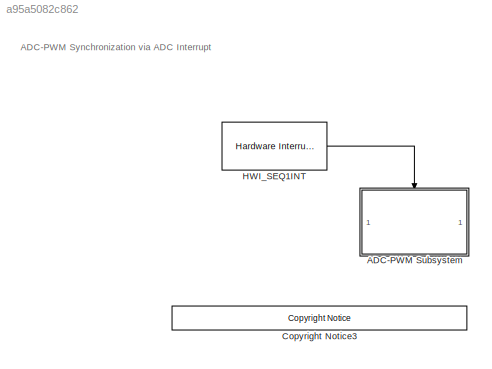
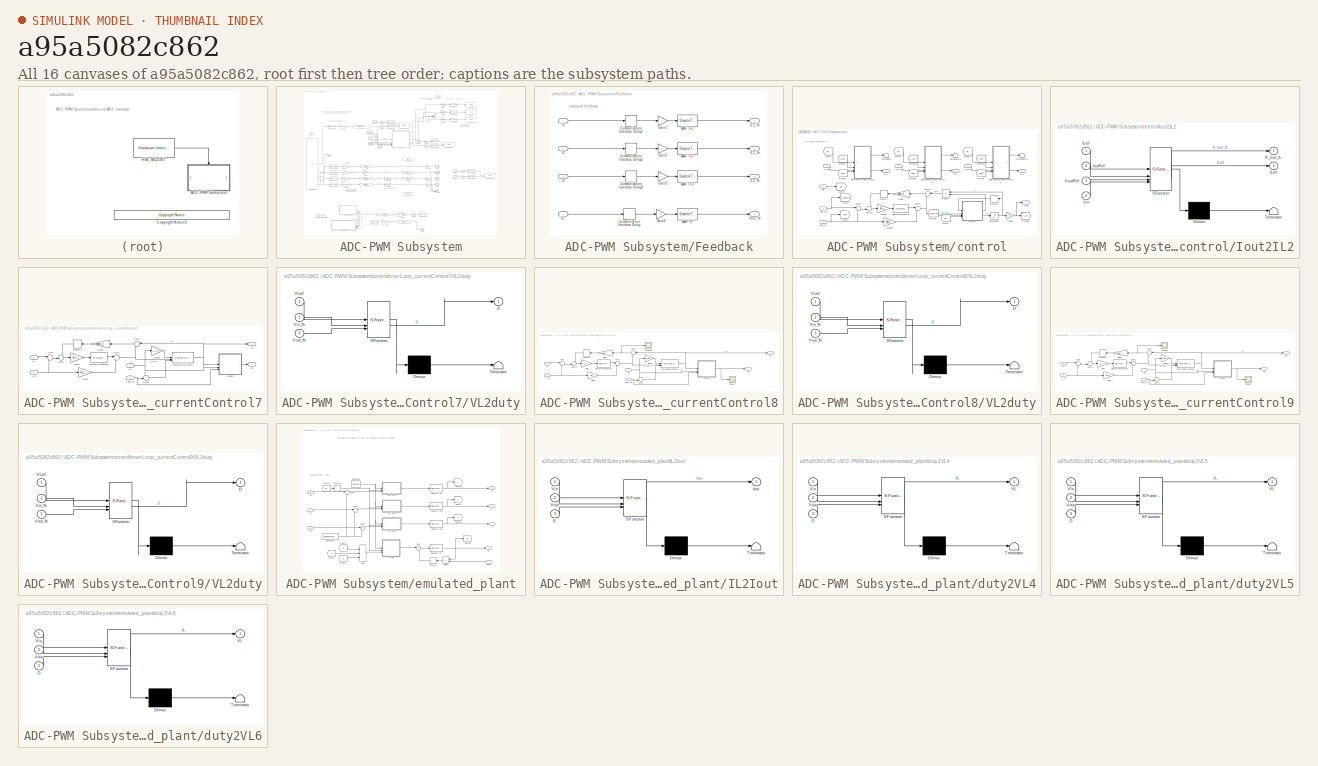
[diagram: thumbnail index - all 16 canvases of the model, root first then tree order]
MODEL slx_a95a5082c862
KIND model
CONFIG AbsTol = auto
CONFIG EnableMultiTasking = on
CONFIG FixedStep = Tsw
CONFIG MaxStep = auto
CONFIG MinStep = auto
CONFIG RelTol = 1e-3
CONFIG SampleTimeConstraint = Unconstrained
CONFIG SolverName = FixedStepDiscrete
CONFIG StartTime = 0.0
CONFIG StopTime = inf
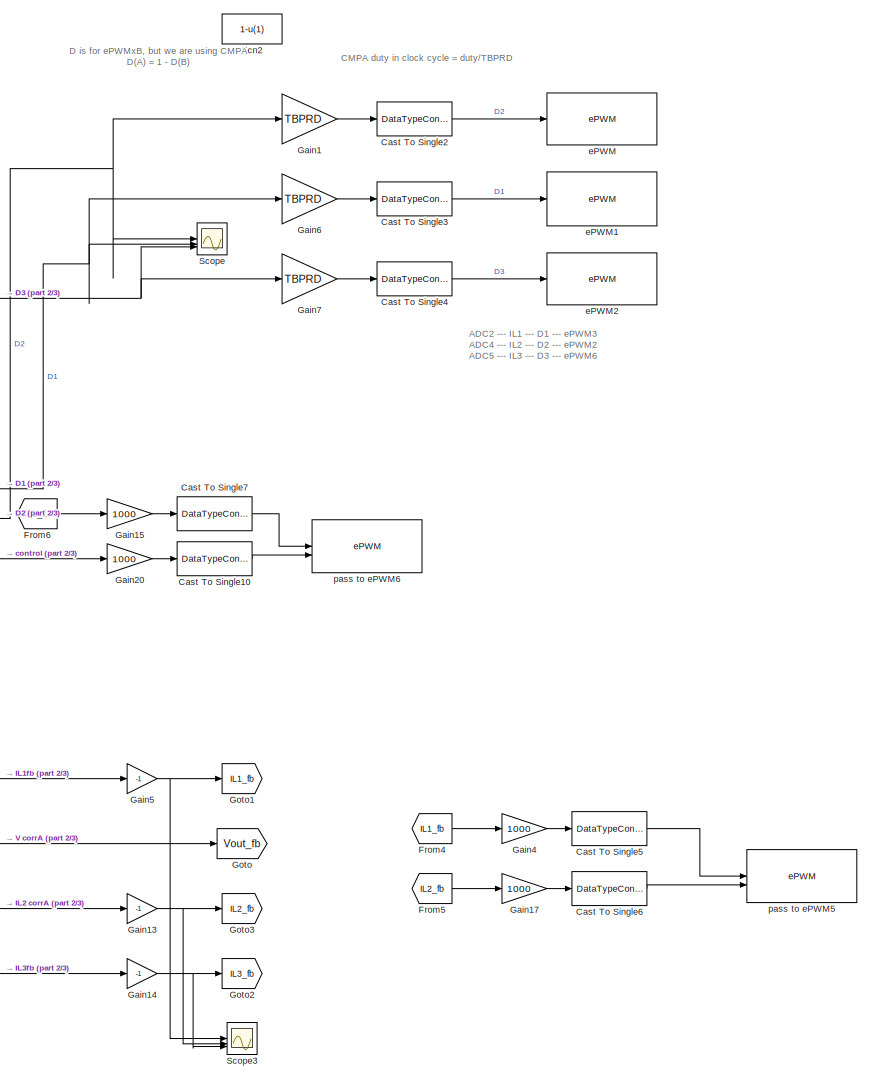
[diagram: ADC-PWM Subsystem - part 1/3, middle right region]
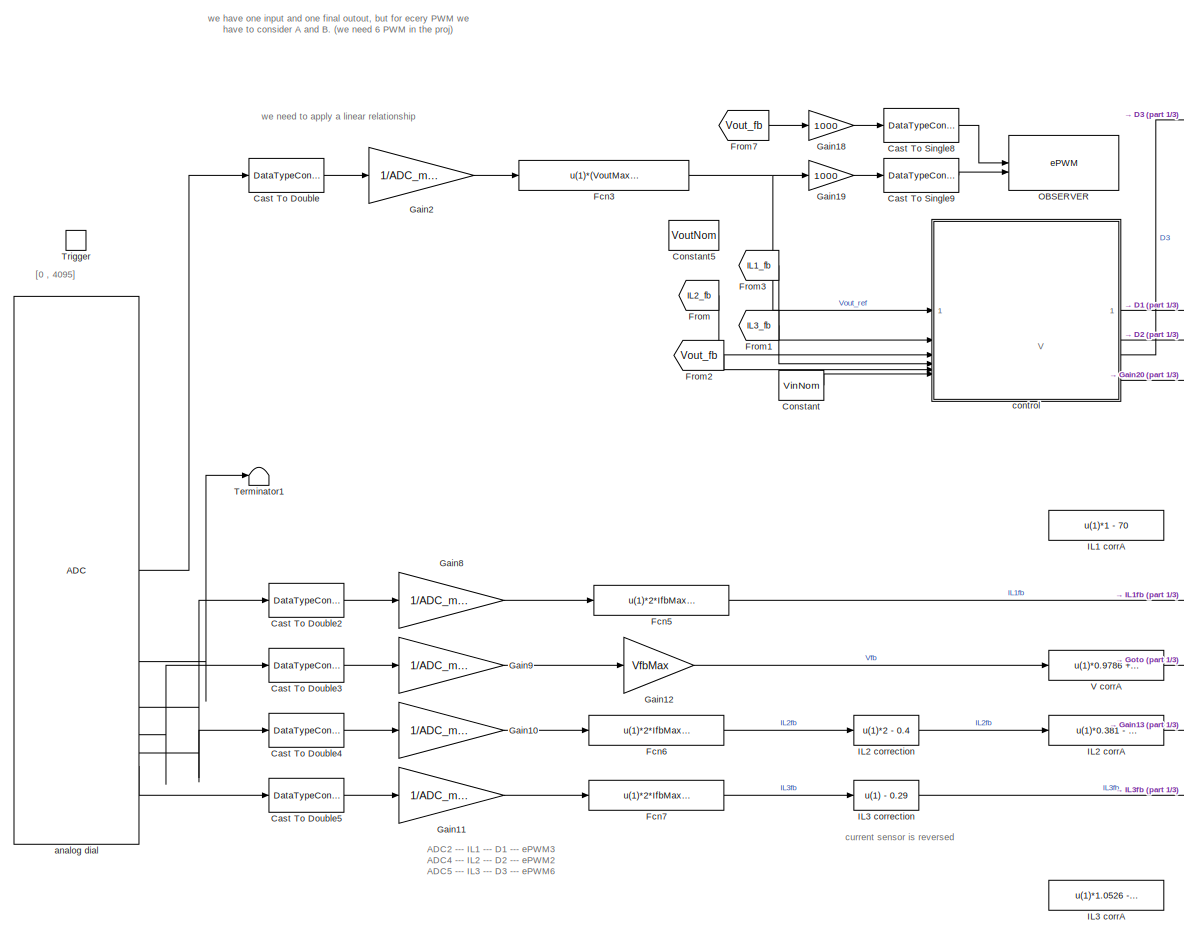
[diagram: ADC-PWM Subsystem - part 2/3, middle left region]
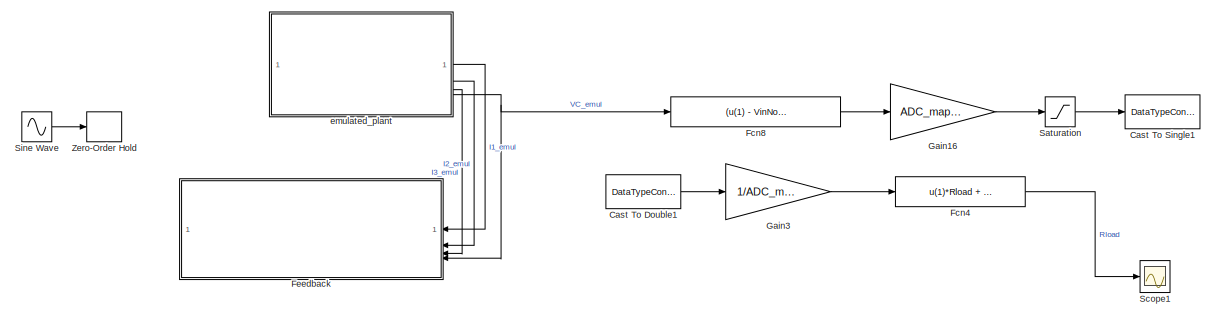
[diagram: ADC-PWM Subsystem - part 3/3, bottom center region]
BLOCK [SubSystem] ADC-PWM Subsystem
  TreatAsAtomicUnit = on
BLOCK [DataTypeConversion] ADC-PWM Subsystem/Cast To Double
  OutDataTypeStr = double
  RndMeth = Floor
  SaturateOnIntegerOverflow = off
BLOCK [DataTypeConversion] ADC-PWM Subsystem/Cast To Double1
  Commented = on
  OutDataTypeStr = double
  RndMeth = Floor
  SaturateOnIntegerOverflow = off
BLOCK [DataTypeConversion] ADC-PWM Subsystem/Cast To Double2
  OutDataTypeStr = double
  RndMeth = Floor
  SaturateOnIntegerOverflow = off
BLOCK [DataTypeConversion] ADC-PWM Subsystem/Cast To Double3
  OutDataTypeStr = double
  RndMeth = Floor
  SaturateOnIntegerOverflow = off
BLOCK [DataTypeConversion] ADC-PWM Subsystem/Cast To Double4
  OutDataTypeStr = double
  RndMeth = Floor
  SaturateOnIntegerOverflow = off
BLOCK [DataTypeConversion] ADC-PWM Subsystem/Cast To Double5
  OutDataTypeStr = double
  RndMeth = Floor
  SaturateOnIntegerOverflow = off
BLOCK [DataTypeConversion] ADC-PWM Subsystem/Cast To Single1
  Commented = on
  OutDataTypeStr = uint16
  RndMeth = Floor
  SaturateOnIntegerOverflow = off
BLOCK [DataTypeConversion] ADC-PWM Subsystem/Cast To Single10
  OutDataTypeStr = uint16
  RndMeth = Floor
  SaturateOnIntegerOverflow = off
BLOCK [DataTypeConversion] ADC-PWM Subsystem/Cast To Single2
  OutDataTypeStr = uint16
  RndMeth = Floor
  SaturateOnIntegerOverflow = off
BLOCK [DataTypeConversion] ADC-PWM Subsystem/Cast To Single3
  OutDataTypeStr = uint16
  RndMeth = Floor
  SaturateOnIntegerOverflow = off
BLOCK [DataTypeConversion] ADC-PWM Subsystem/Cast To Single4
  OutDataTypeStr = uint16
  RndMeth = Floor
  SaturateOnIntegerOverflow = off
BLOCK [DataTypeConversion] ADC-PWM Subsystem/Cast To Single5
  OutDataTypeStr = uint16
  RndMeth = Floor
  SaturateOnIntegerOverflow = off
BLOCK [DataTypeConversion] ADC-PWM Subsystem/Cast To Single6
  OutDataTypeStr = uint16
  RndMeth = Floor
  SaturateOnIntegerOverflow = off
BLOCK [DataTypeConversion] ADC-PWM Subsystem/Cast To Single7
  OutDataTypeStr = uint16
  RndMeth = Floor
  SaturateOnIntegerOverflow = off
BLOCK [DataTypeConversion] ADC-PWM Subsystem/Cast To Single8
  OutDataTypeStr = uint16
  RndMeth = Floor
  SaturateOnIntegerOverflow = off
BLOCK [DataTypeConversion] ADC-PWM Subsystem/Cast To Single9
  OutDataTypeStr = uint16
  RndMeth = Floor
  SaturateOnIntegerOverflow = off
BLOCK [Constant] ADC-PWM Subsystem/Constant
  Value = VinNom
BLOCK [Constant] ADC-PWM Subsystem/Constant5
  Commented = on
  SampleTime = -1
  Value = VoutNom
BLOCK [Fcn] ADC-PWM Subsystem/Fcn2
  Commented = on
  Expr = 1-u(1)
BLOCK [Fcn] ADC-PWM Subsystem/Fcn3
  Expr = u(1)*(VoutMax-VinNom) + VinNom
BLOCK [Fcn] ADC-PWM Subsystem/Fcn4
  Commented = on
  Expr = u(1)*Rload + 0.5*Rload
BLOCK [Fcn] ADC-PWM Subsystem/Fcn5
  Expr = u(1)*2*IfbMax - IfbMax
BLOCK [Fcn] ADC-PWM Subsystem/Fcn6
  Expr = u(1)*2*IfbMax - IfbMax
BLOCK [Fcn] ADC-PWM Subsystem/Fcn7
  Expr = u(1)*2*IfbMax - IfbMax
BLOCK [Fcn] ADC-PWM Subsystem/Fcn8
  Commented = on
  Expr = (u(1) - VinNom) / (VoutMax-VinNom)
BLOCK [SubSystem] ADC-PWM Subsystem/Feedback
  Commented = on
  NameLocation = top
BLOCK [DiscreteTransferFcn] ADC-PWM Subsystem/Feedback/AAF TF
  Denominator = zden_aaf
  InputPortMap = u0
  Numerator = znum_aaf
BLOCK [DiscreteTransferFcn] ADC-PWM Subsystem/Feedback/AAF TF1
  Denominator = zden_aaf
  InputPortMap = u0
  Numerator = znum_aaf
BLOCK [DiscreteTransferFcn] ADC-PWM Subsystem/Feedback/AAF TF2
  Denominator = zden_aaf
  InputPortMap = u0
  Numerator = znum_aaf
BLOCK [DiscreteTransferFcn] ADC-PWM Subsystem/Feedback/AAF TF3
  Denominator = zden_aaf
  InputPortMap = u0
  Numerator = znum_aaf
BLOCK [Delay] ADC-PWM Subsystem/Feedback/Communication Interface Delay
  InputPortMap = u0
BLOCK [Delay] ADC-PWM Subsystem/Feedback/Communication Interface Delay1
  InputPortMap = u0
BLOCK [Delay] ADC-PWM Subsystem/Feedback/Communication Interface Delay2
  InputPortMap = u0
BLOCK [Delay] ADC-PWM Subsystem/Feedback/Communication Interface Delay3
  InputPortMap = u0
BLOCK [Gain] ADC-PWM Subsystem/Feedback/Gain1
  Gain = -1
BLOCK [Gain] ADC-PWM Subsystem/Feedback/Gain2
  Gain = -1
BLOCK [Gain] ADC-PWM Subsystem/Feedback/Gain3
  Gain = -1
BLOCK [Gain] ADC-PWM Subsystem/Feedback/Gain4
  Gain = -1
BLOCK [Inport] ADC-PWM Subsystem/Feedback/I1
BLOCK [Inport] ADC-PWM Subsystem/Feedback/I2
  Port = 2
BLOCK [Inport] ADC-PWM Subsystem/Feedback/I3
  Port = 3
BLOCK [Outport] ADC-PWM Subsystem/Feedback/IL1_fb
BLOCK [Outport] ADC-PWM Subsystem/Feedback/IL2_fb
  Port = 2
BLOCK [Outport] ADC-PWM Subsystem/Feedback/IL3_fb
  Port = 3
BLOCK [Inport] ADC-PWM Subsystem/Feedback/VC
  Port = 4
BLOCK [Outport] ADC-PWM Subsystem/Feedback/Vout_fb
  Port = 4
BLOCK [From] ADC-PWM Subsystem/From
  GotoTag = IL2_fb
BLOCK [From] ADC-PWM Subsystem/From1
  GotoTag = IL3_fb
BLOCK [From] ADC-PWM Subsystem/From2
  GotoTag = Vout_fb
BLOCK [From] ADC-PWM Subsystem/From3
  GotoTag = IL1_fb
BLOCK [From] ADC-PWM Subsystem/From4
  GotoTag = IL1_fb
BLOCK [From] ADC-PWM Subsystem/From5
  GotoTag = IL2_fb
BLOCK [From] ADC-PWM Subsystem/From6
  GotoTag = IL3_fb
BLOCK [From] ADC-PWM Subsystem/From7
  GotoTag = Vout_fb
BLOCK [Gain] ADC-PWM Subsystem/Gain1
  Gain = TBPRD
BLOCK [Gain] ADC-PWM Subsystem/Gain10
  Gain = 1/ADC_mapping
BLOCK [Gain] ADC-PWM Subsystem/Gain11
  Gain = 1/ADC_mapping
BLOCK [Gain] ADC-PWM Subsystem/Gain12
  Gain = VfbMax
BLOCK [Gain] ADC-PWM Subsystem/Gain13
  Gain = -1
BLOCK [Gain] ADC-PWM Subsystem/Gain14
  Gain = -1
BLOCK [Gain] ADC-PWM Subsystem/Gain15
  Gain = 1000
BLOCK [Gain] ADC-PWM Subsystem/Gain16
  Commented = on
  Gain = ADC_mapping
BLOCK [Gain] ADC-PWM Subsystem/Gain17
  Gain = 1000
BLOCK [Gain] ADC-PWM Subsystem/Gain18
  Gain = 1000
BLOCK [Gain] ADC-PWM Subsystem/Gain19
  Gain = 1000
BLOCK [Gain] ADC-PWM Subsystem/Gain2
  Gain = 1/ADC_mapping
BLOCK [Gain] ADC-PWM Subsystem/Gain20
  Gain = 1000
BLOCK [Gain] ADC-PWM Subsystem/Gain3
  Commented = on
  Gain = 1/ADC_mapping
BLOCK [Gain] ADC-PWM Subsystem/Gain4
  Gain = 1000
BLOCK [Gain] ADC-PWM Subsystem/Gain5
  Gain = -1
BLOCK [Gain] ADC-PWM Subsystem/Gain6
  Gain = TBPRD
BLOCK [Gain] ADC-PWM Subsystem/Gain7
  Gain = TBPRD
BLOCK [Gain] ADC-PWM Subsystem/Gain8
  Gain = 1/ADC_mapping
BLOCK [Gain] ADC-PWM Subsystem/Gain9
  Gain = 1/ADC_mapping
BLOCK [Goto] ADC-PWM Subsystem/Goto
  GotoTag = Vout_fb
BLOCK [Goto] ADC-PWM Subsystem/Goto1
  GotoTag = IL1_fb
BLOCK [Goto] ADC-PWM Subsystem/Goto2
  GotoTag = IL3_fb
BLOCK [Goto] ADC-PWM Subsystem/Goto3
  GotoTag = IL2_fb
BLOCK [Fcn] ADC-PWM Subsystem/IL1 corrA
  Commented = on
  Expr = u(1)*1 - 70
BLOCK [Fcn] ADC-PWM Subsystem/IL2 corrA
  Expr = u(1)*0.381 - 7.619
BLOCK [Fcn] ADC-PWM Subsystem/IL2 correction
  Expr = u(1)*2 - 0.4
BLOCK [Fcn] ADC-PWM Subsystem/IL3 corrA
  Commented = on
  Expr = u(1)*1.0526 - 144.7368
BLOCK [Fcn] ADC-PWM Subsystem/IL3 correction
  Expr = u(1) - 0.29
BLOCK [Reference] ADC-PWM Subsystem/OBSERVER  REF=c280xlib/ePWM
  SourceBlock = c280xlib/ePWM
  SourceType = ePWM Type 0
  UserDataPersistent = on
BLOCK [Saturate] ADC-PWM Subsystem/Saturation
  Commented = on
  LowerLimit = 0
  UpperLimit = ADC_mapping
BLOCK [Scope] ADC-PWM Subsystem/Scope
  Floating = off
  NumInputPorts = 3
  ScopeSpecificationString = Simulink.scopes.TimeScopeBlockCfg('CurrentConfiguration', extmgr.ConfigurationSet(extmgr.Configuration('Core','General UI',true),extmgr.Configuration('Core','Source UI',true),extmgr.Configuration('Sources','WiredSimulink',true,'DataLoggingVariableName','ScopeData1'),extmgr.Configuration('Visuals','Time Domain',true,'SerializedDisplays',{struct('MinYLimReal','-792.625','MaxYLimReal','7133.625','YLa...<+1495ch>
BLOCK [Scope] ADC-PWM Subsystem/Scope1
  Commented = on
  Floating = off
  NumInputPorts = 1
  ScopeSpecificationString = Simulink.scopes.TimeScopeBlockCfg('CurrentConfiguration', extmgr.ConfigurationSet(extmgr.Configuration('Core','General UI',true),extmgr.Configuration('Core','Source UI',true),extmgr.Configuration('Sources','WiredSimulink',true,'DataLoggingVariableName','ScopeData1'),extmgr.Configuration('Visuals','Time Domain',true),extmgr.Configuration('Tools','Plot Navigation',true),extmgr.Configuration('Tools',...<+40ch>
BLOCK [Scope] ADC-PWM Subsystem/Scope3
  Floating = off
  NumInputPorts = 3
  ScopeSpecificationString = Simulink.scopes.TimeScopeBlockCfg('CurrentConfiguration', extmgr.ConfigurationSet(extmgr.Configuration('Core','General UI',true),extmgr.Configuration('Core','Source UI',true),extmgr.Configuration('Sources','WiredSimulink',true,'DataLoggingVariableName','ScopeData2'),extmgr.Configuration('Visuals','Time Domain',true,'SerializedDisplays',{struct('MinYLimReal','-10','MaxYLimReal','10','YLabelReal',''...<+1480ch>
BLOCK [Sin] ADC-PWM Subsystem/Sine Wave
  Amplitude = floor(ADC_mapping/2)
  Bias = floor(ADC_mapping/2)
  Commented = on
  Frequency = 2*pi
BLOCK [Terminator] ADC-PWM Subsystem/Terminator1
BLOCK [TriggerPort] ADC-PWM Subsystem/Trigger
  PortDimensions = 1
  StatesWhenEnabling = held
  TriggerType = function-call
  VariantControl = (inherit)
BLOCK [Fcn] ADC-PWM Subsystem/V corrA
  Expr = u(1)*0.9786 + 3.3429
BLOCK [ZeroOrderHold] ADC-PWM Subsystem/Zero-Order Hold
  Commented = on
  SampleTime = -1
BLOCK [Reference] ADC-PWM Subsystem/analog dial  REF=c280xlib/ADC
  SourceBlock = c280xlib/ADC
  SourceType = ADC Type 1-2
  UserDataPersistent = on
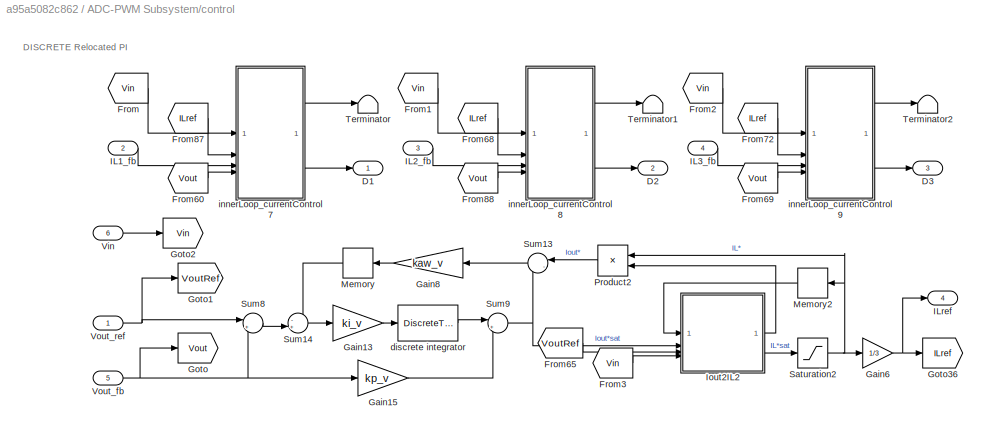
BLOCK [SubSystem] ADC-PWM Subsystem/control
BLOCK [Outport] ADC-PWM Subsystem/control/D1
BLOCK [Outport] ADC-PWM Subsystem/control/D2
  Port = 2
BLOCK [Outport] ADC-PWM Subsystem/control/D3
  Port = 3
BLOCK [From] ADC-PWM Subsystem/control/From
  GotoTag = Vin
BLOCK [From] ADC-PWM Subsystem/control/From1
  GotoTag = Vin
BLOCK [From] ADC-PWM Subsystem/control/From2
  GotoTag = Vin
BLOCK [From] ADC-PWM Subsystem/control/From3
  GotoTag = Vin
BLOCK [From] ADC-PWM Subsystem/control/From60
  GotoTag = Vout
BLOCK [From] ADC-PWM Subsystem/control/From65
  GotoTag = VoutRef
BLOCK [From] ADC-PWM Subsystem/control/From68
  GotoTag = ILref
BLOCK [From] ADC-PWM Subsystem/control/From69
  GotoTag = Vout
BLOCK [From] ADC-PWM Subsystem/control/From72
  GotoTag = ILref
BLOCK [From] ADC-PWM Subsystem/control/From87
  GotoTag = ILref
BLOCK [From] ADC-PWM Subsystem/control/From88
  GotoTag = Vout
BLOCK [Gain] ADC-PWM Subsystem/control/Gain13
  Gain = ki_v
BLOCK [Gain] ADC-PWM Subsystem/control/Gain15
  Gain = kp_v
BLOCK [Gain] ADC-PWM Subsystem/control/Gain6
  Gain = 1/3
BLOCK [Gain] ADC-PWM Subsystem/control/Gain8
  Gain = kaw_v
  NameLocation = top
BLOCK [Goto] ADC-PWM Subsystem/control/Goto
  GotoTag = Vout
BLOCK [Goto] ADC-PWM Subsystem/control/Goto1
  GotoTag = VoutRef
BLOCK [Goto] ADC-PWM Subsystem/control/Goto2
  GotoTag = Vin
BLOCK [Goto] ADC-PWM Subsystem/control/Goto36
  GotoTag = ILref
BLOCK [Inport] ADC-PWM Subsystem/control/IL1_fb
  Port = 2
BLOCK [Inport] ADC-PWM Subsystem/control/IL2_fb
  Port = 3
BLOCK [Inport] ADC-PWM Subsystem/control/IL3_fb
  Port = 4
BLOCK [Outport] ADC-PWM Subsystem/control/ILref
  Port = 4
BLOCK [SubSystem] ADC-PWM Subsystem/control/Iout2IL2
  ErrorFcn = Stateflow.Translate.translate
  PermitHierarchicalResolution = ExplicitOnly
  SFBlockType = MATLAB Function
  TreatAsAtomicUnit = on
BLOCK [Demux] ADC-PWM Subsystem/control/Iout2IL2/ Demux 
  Outputs = 1
BLOCK [S-Function] ADC-PWM Subsystem/control/Iout2IL2/ SFunction 
  EnableBusSupport = on
  FunctionName = sf_sfun
  Parameters = RserL
  PortCounts = [4 3]
  SFcnIsStateOwnerBlock = off
  SFunctionDeploymentMode = off
  Tag = Stateflow S-Function 8
BLOCK [Terminator] ADC-PWM Subsystem/control/Iout2IL2/ Terminator 
BLOCK [Outport] ADC-PWM Subsystem/control/Iout2IL2/ILref
  Port = 2
  VectorParamsAs1DForOutWhenUnconnected = off
BLOCK [Inport] ADC-PWM Subsystem/control/Iout2IL2/ILref 
BLOCK [Inport] ADC-PWM Subsystem/control/Iout2IL2/IoutRef
  Port = 2
BLOCK [Outport] ADC-PWM Subsystem/control/Iout2IL2/K_Iout_IL
  VectorParamsAs1DForOutWhenUnconnected = off
BLOCK [Inport] ADC-PWM Subsystem/control/Iout2IL2/Vin
  Port = 4
BLOCK [Inport] ADC-PWM Subsystem/control/Iout2IL2/VoutRef
  Port = 3
BLOCK [Memory] ADC-PWM Subsystem/control/Memory
  InheritSampleTime = on
  NameLocation = top
BLOCK [Memory] ADC-PWM Subsystem/control/Memory2
  InheritSampleTime = on
  NameLocation = top
BLOCK [Product] ADC-PWM Subsystem/control/Product2
  NameLocation = top
BLOCK [Saturate] ADC-PWM Subsystem/control/Saturation2
  LowerLimit = -ILmax
  UpperLimit = ILmax
BLOCK [Sum] ADC-PWM Subsystem/control/Sum13
  Inputs = |-+
  NameLocation = top
BLOCK [Sum] ADC-PWM Subsystem/control/Sum14
  Inputs = -+|
BLOCK [Sum] ADC-PWM Subsystem/control/Sum8
  Inputs = |+-
BLOCK [Sum] ADC-PWM Subsystem/control/Sum9
  Inputs = |+-
BLOCK [Terminator] ADC-PWM Subsystem/control/Terminator
BLOCK [Terminator] ADC-PWM Subsystem/control/Terminator1
BLOCK [Terminator] ADC-PWM Subsystem/control/Terminator2
BLOCK [Inport] ADC-PWM Subsystem/control/Vin
  Port = 6
BLOCK [Inport] ADC-PWM Subsystem/control/Vout_fb
  Port = 5
BLOCK [Inport] ADC-PWM Subsystem/control/Vout_ref
BLOCK [DiscreteTransferFcn] ADC-PWM Subsystem/control/discrete integrator
  Denominator = zden_Integrator
  InputPortMap = u0
  Numerator = znum_Integrator
BLOCK [SubSystem] ADC-PWM Subsystem/control/innerLoop_currentControl7
BLOCK [Outport] ADC-PWM Subsystem/control/innerLoop_currentControl7/D1
  Port = 2
BLOCK [Gain] ADC-PWM Subsystem/control/innerLoop_currentControl7/Gain
  Gain = ki_i
BLOCK [Gain] ADC-PWM Subsystem/control/innerLoop_currentControl7/Gain1
  Gain = kp_i
BLOCK [Gain] ADC-PWM Subsystem/control/innerLoop_currentControl7/Gain2
  Gain = kaw_i
  NameLocation = top
BLOCK [Gain] ADC-PWM Subsystem/control/innerLoop_currentControl7/Gain3
  Gain = VLlim
BLOCK [Inport] ADC-PWM Subsystem/control/innerLoop_currentControl7/IL*
  Port = 2
BLOCK [Inport] ADC-PWM Subsystem/control/innerLoop_currentControl7/IL_fb
  Port = 3
BLOCK [Memory] ADC-PWM Subsystem/control/innerLoop_currentControl7/Memory
  InheritSampleTime = on
  NameLocation = top
BLOCK [Reference] ADC-PWM Subsystem/control/innerLoop_currentControl7/Saturation Dynamic  REF=simulink/Discontinuities/Saturation
Dynamic
  SourceBlock = simulink/Discontinuities/Saturation\nDynamic
  SourceType = Saturation Dynamic
BLOCK [Sum] ADC-PWM Subsystem/control/innerLoop_currentControl7/Sum
  Inputs = |+-
BLOCK [Sum] ADC-PWM Subsystem/control/innerLoop_currentControl7/Sum1
  Inputs = |+-
BLOCK [Sum] ADC-PWM Subsystem/control/innerLoop_currentControl7/Sum2
  Inputs = |-+
  NameLocation = top
BLOCK [Sum] ADC-PWM Subsystem/control/innerLoop_currentControl7/Sum3
  Inputs = -+|
BLOCK [Sum] ADC-PWM Subsystem/control/innerLoop_currentControl7/Sum4
  Inputs = +-|
BLOCK [Outport] ADC-PWM Subsystem/control/innerLoop_currentControl7/VL*
BLOCK [SubSystem] ADC-PWM Subsystem/control/innerLoop_currentControl7/VL2duty
  ErrorFcn = Stateflow.Translate.translate
  PermitHierarchicalResolution = ExplicitOnly
  SFBlockType = MATLAB Function
  TreatAsAtomicUnit = on
BLOCK [Demux] ADC-PWM Subsystem/control/innerLoop_currentControl7/VL2duty/ Demux 
  Outputs = 1
BLOCK [S-Function] ADC-PWM Subsystem/control/innerLoop_currentControl7/VL2duty/ SFunction 
  EnableBusSupport = on
  FunctionName = sf_sfun
  PortCounts = [3 2]
  SFcnIsStateOwnerBlock = off
  SFunctionDeploymentMode = off
  Tag = Stateflow S-Function 24
BLOCK [Terminator] ADC-PWM Subsystem/control/innerLoop_currentControl7/VL2duty/ Terminator 
BLOCK [Outport] ADC-PWM Subsystem/control/innerLoop_currentControl7/VL2duty/D
  VectorParamsAs1DForOutWhenUnconnected = off
BLOCK [Inport] ADC-PWM Subsystem/control/innerLoop_currentControl7/VL2duty/VLref
BLOCK [Inport] ADC-PWM Subsystem/control/innerLoop_currentControl7/VL2duty/Vin_fb
  Port = 2
BLOCK [Inport] ADC-PWM Subsystem/control/innerLoop_currentControl7/VL2duty/Vout_fb
  Port = 3
BLOCK [Inport] ADC-PWM Subsystem/control/innerLoop_currentControl7/Vin
BLOCK [Inport] ADC-PWM Subsystem/control/innerLoop_currentControl7/Vout_fb
  Port = 4
BLOCK [DiscreteTransferFcn] ADC-PWM Subsystem/control/innerLoop_currentControl7/discrete integrator
  Denominator = zden_Integrator
  InputPortMap = u0
  Numerator = znum_Integrator
BLOCK [SubSystem] ADC-PWM Subsystem/control/innerLoop_currentControl8
BLOCK [Outport] ADC-PWM Subsystem/control/innerLoop_currentControl8/D2
  Port = 2
BLOCK [Gain] ADC-PWM Subsystem/control/innerLoop_currentControl8/Gain
  Gain = ki_i
BLOCK [Gain] ADC-PWM Subsystem/control/innerLoop_currentControl8/Gain1
  Gain = kp_i
BLOCK [Gain] ADC-PWM Subsystem/control/innerLoop_currentControl8/Gain2
  Gain = kaw_i
  NameLocation = top
BLOCK [Gain] ADC-PWM Subsystem/control/innerLoop_currentControl8/Gain3
  Gain = VLlim
BLOCK [Inport] ADC-PWM Subsystem/control/innerLoop_currentControl8/IL*
  Port = 2
BLOCK [Inport] ADC-PWM Subsystem/control/innerLoop_currentControl8/IL_fb
  Port = 3
BLOCK [Memory] ADC-PWM Subsystem/control/innerLoop_currentControl8/Memory
  InheritSampleTime = on
  NameLocation = top
BLOCK [Reference] ADC-PWM Subsystem/control/innerLoop_currentControl8/Saturation Dynamic  REF=simulink/Discontinuities/Saturation
Dynamic
  SourceBlock = simulink/Discontinuities/Saturation\nDynamic
  SourceType = Saturation Dynamic
BLOCK [Scope] ADC-PWM Subsystem/control/innerLoop_currentControl8/Scope6
  Floating = off
  NumInputPorts = 1
  ScopeSpecificationString = Simulink.scopes.TimeScopeBlockCfg('CurrentConfiguration', extmgr.ConfigurationSet(extmgr.Configuration('Core','General UI',true),extmgr.Configuration('Core','Source UI',true),extmgr.Configuration('Sources','WiredSimulink',true,'DataLoggingVariableName','ScopeData2'),extmgr.Configuration('Visuals','Time Domain',true,'SerializedDisplays',{struct('MinYLimReal','-417.1238','MaxYLimReal','46.38546','YL...<+1371ch>
BLOCK [Scope] ADC-PWM Subsystem/control/innerLoop_currentControl8/Scope7
  Floating = off
  NumInputPorts = 1
  ScopeSpecificationString = Simulink.scopes.TimeScopeBlockCfg('CurrentConfiguration', extmgr.ConfigurationSet(extmgr.Configuration('Core','General UI',true),extmgr.Configuration('Core','Source UI',true),extmgr.Configuration('Sources','WiredSimulink',true,'DataLoggingVariableName','ScopeData2'),extmgr.Configuration('Visuals','Time Domain',true,'SerializedDisplays',{struct('MinYLimReal','-1.00000','MaxYLimReal','1.00000','YLab...<+1366ch>
BLOCK [Sum] ADC-PWM Subsystem/control/innerLoop_currentControl8/Sum
  Inputs = |+-
BLOCK [Sum] ADC-PWM Subsystem/control/innerLoop_currentControl8/Sum1
  Inputs = |+-
BLOCK [Sum] ADC-PWM Subsystem/control/innerLoop_currentControl8/Sum2
  Inputs = |-+
  NameLocation = top
BLOCK [Sum] ADC-PWM Subsystem/control/innerLoop_currentControl8/Sum3
  Inputs = -+|
BLOCK [Sum] ADC-PWM Subsystem/control/innerLoop_currentControl8/Sum4
  Inputs = +-|
BLOCK [Outport] ADC-PWM Subsystem/control/innerLoop_currentControl8/VL*
BLOCK [SubSystem] ADC-PWM Subsystem/control/innerLoop_currentControl8/VL2duty
  ErrorFcn = Stateflow.Translate.translate
  PermitHierarchicalResolution = ExplicitOnly
  SFBlockType = MATLAB Function
  TreatAsAtomicUnit = on
BLOCK [Demux] ADC-PWM Subsystem/control/innerLoop_currentControl8/VL2duty/ Demux 
  Outputs = 1
BLOCK [S-Function] ADC-PWM Subsystem/control/innerLoop_currentControl8/VL2duty/ SFunction 
  EnableBusSupport = on
  FunctionName = sf_sfun
  PortCounts = [3 2]
  SFcnIsStateOwnerBlock = off
  SFunctionDeploymentMode = off
  Tag = Stateflow S-Function 1
BLOCK [Terminator] ADC-PWM Subsystem/control/innerLoop_currentControl8/VL2duty/ Terminator 
BLOCK [Outport] ADC-PWM Subsystem/control/innerLoop_currentControl8/VL2duty/D
  VectorParamsAs1DForOutWhenUnconnected = off
BLOCK [Inport] ADC-PWM Subsystem/control/innerLoop_currentControl8/VL2duty/VLref
BLOCK [Inport] ADC-PWM Subsystem/control/innerLoop_currentControl8/VL2duty/Vin_fb
  Port = 2
BLOCK [Inport] ADC-PWM Subsystem/control/innerLoop_currentControl8/VL2duty/Vout_fb
  Port = 3
BLOCK [Inport] ADC-PWM Subsystem/control/innerLoop_currentControl8/Vin
BLOCK [Inport] ADC-PWM Subsystem/control/innerLoop_currentControl8/Vout_fb
  Port = 4
BLOCK [DiscreteTransferFcn] ADC-PWM Subsystem/control/innerLoop_currentControl8/discrete integrator
  Denominator = zden_Integrator
  InputPortMap = u0
  Numerator = znum_Integrator
BLOCK [SubSystem] ADC-PWM Subsystem/control/innerLoop_currentControl9
BLOCK [Outport] ADC-PWM Subsystem/control/innerLoop_currentControl9/D3
  Port = 2
BLOCK [Gain] ADC-PWM Subsystem/control/innerLoop_currentControl9/Gain
  Gain = ki_i
BLOCK [Gain] ADC-PWM Subsystem/control/innerLoop_currentControl9/Gain1
  Gain = kp_i
BLOCK [Gain] ADC-PWM Subsystem/control/innerLoop_currentControl9/Gain2
  Gain = kaw_i
  NameLocation = top
BLOCK [Gain] ADC-PWM Subsystem/control/innerLoop_currentControl9/Gain3
  Gain = VLlim
BLOCK [Inport] ADC-PWM Subsystem/control/innerLoop_currentControl9/IL*
  Port = 2
BLOCK [Inport] ADC-PWM Subsystem/control/innerLoop_currentControl9/IL_fb
  Port = 3
BLOCK [Memory] ADC-PWM Subsystem/control/innerLoop_currentControl9/Memory
  InheritSampleTime = on
  NameLocation = top
BLOCK [Reference] ADC-PWM Subsystem/control/innerLoop_currentControl9/Saturation Dynamic  REF=simulink/Discontinuities/Saturation
Dynamic
  SourceBlock = simulink/Discontinuities/Saturation\nDynamic
  SourceType = Saturation Dynamic
BLOCK [Scope] ADC-PWM Subsystem/control/innerLoop_currentControl9/Scope6
  Floating = off
  NumInputPorts = 1
  ScopeSpecificationString = Simulink.scopes.TimeScopeBlockCfg('CurrentConfiguration', extmgr.ConfigurationSet(extmgr.Configuration('Core','General UI',true),extmgr.Configuration('Core','Source UI',true),extmgr.Configuration('Sources','WiredSimulink',true,'DataLoggingVariableName','ScopeData2'),extmgr.Configuration('Visuals','Time Domain',true,'SerializedDisplays',{struct('MinYLimReal','-1.00000','MaxYLimReal','1.00000','YLab...<+1363ch>
BLOCK [Scope] ADC-PWM Subsystem/control/innerLoop_currentControl9/Scope7
  Floating = off
  NumInputPorts = 1
  ScopeSpecificationString = Simulink.scopes.TimeScopeBlockCfg('CurrentConfiguration', extmgr.ConfigurationSet(extmgr.Configuration('Core','General UI',true),extmgr.Configuration('Core','Source UI',true),extmgr.Configuration('Sources','WiredSimulink',true,'DataLoggingVariableName','ScopeData2'),extmgr.Configuration('Visuals','Time Domain',true,'SerializedDisplays',{struct('MinYLimReal','-1.00000','MaxYLimReal','1.00000','YLab...<+1366ch>
BLOCK [Sum] ADC-PWM Subsystem/control/innerLoop_currentControl9/Sum
  Inputs = |+-
BLOCK [Sum] ADC-PWM Subsystem/control/innerLoop_currentControl9/Sum1
  Inputs = |+-
BLOCK [Sum] ADC-PWM Subsystem/control/innerLoop_currentControl9/Sum2
  Inputs = |-+
  NameLocation = top
BLOCK [Sum] ADC-PWM Subsystem/control/innerLoop_currentControl9/Sum3
  Inputs = -+|
BLOCK [Sum] ADC-PWM Subsystem/control/innerLoop_currentControl9/Sum4
  Inputs = +-|
BLOCK [Outport] ADC-PWM Subsystem/control/innerLoop_currentControl9/VL*
BLOCK [SubSystem] ADC-PWM Subsystem/control/innerLoop_currentControl9/VL2duty
  ErrorFcn = Stateflow.Translate.translate
  PermitHierarchicalResolution = ExplicitOnly
  SFBlockType = MATLAB Function
  TreatAsAtomicUnit = on
BLOCK [Demux] ADC-PWM Subsystem/control/innerLoop_currentControl9/VL2duty/ Demux 
  Outputs = 1
BLOCK [S-Function] ADC-PWM Subsystem/control/innerLoop_currentControl9/VL2duty/ SFunction 
  EnableBusSupport = on
  FunctionName = sf_sfun
  PortCounts = [3 2]
  SFcnIsStateOwnerBlock = off
  SFunctionDeploymentMode = off
  Tag = Stateflow S-Function 2
BLOCK [Terminator] ADC-PWM Subsystem/control/innerLoop_currentControl9/VL2duty/ Terminator 
BLOCK [Outport] ADC-PWM Subsystem/control/innerLoop_currentControl9/VL2duty/D
  VectorParamsAs1DForOutWhenUnconnected = off
BLOCK [Inport] ADC-PWM Subsystem/control/innerLoop_currentControl9/VL2duty/VLref
BLOCK [Inport] ADC-PWM Subsystem/control/innerLoop_currentControl9/VL2duty/Vin_fb
  Port = 2
BLOCK [Inport] ADC-PWM Subsystem/control/innerLoop_currentControl9/VL2duty/Vout_fb
  Port = 3
BLOCK [Inport] ADC-PWM Subsystem/control/innerLoop_currentControl9/Vin
BLOCK [Inport] ADC-PWM Subsystem/control/innerLoop_currentControl9/Vout_fb
  Port = 4
BLOCK [DiscreteTransferFcn] ADC-PWM Subsystem/control/innerLoop_currentControl9/discrete integrator
  Denominator = zden_Integrator
  InputPortMap = u0
  Numerator = znum_Integrator
BLOCK [Reference] ADC-PWM Subsystem/ePWM  REF=c280xlib/ePWM
  SourceBlock = c280xlib/ePWM
  SourceType = ePWM Type 0
  UserDataPersistent = on
BLOCK [Reference] ADC-PWM Subsystem/ePWM1  REF=c280xlib/ePWM
  SourceBlock = c280xlib/ePWM
  SourceType = ePWM Type 0
  UserDataPersistent = on
BLOCK [Reference] ADC-PWM Subsystem/ePWM2  REF=c280xlib/ePWM
  SourceBlock = c280xlib/ePWM
  SourceType = ePWM Type 0
  UserDataPersistent = on
BLOCK [SubSystem] ADC-PWM Subsystem/emulated_plant
  Commented = on
BLOCK [DiscreteTransferFcn] ADC-PWM Subsystem/emulated_plant/Capacitor TF
  Denominator = zden_plant_v
  InputPortMap = u0
  Numerator = znum_plant_v
BLOCK [Constant] ADC-PWM Subsystem/emulated_plant/Constant
  Value = VinNom
BLOCK [Constant] ADC-PWM Subsystem/emulated_plant/Constant1
  Value = deadtimesw/Tsw
BLOCK [Inport] ADC-PWM Subsystem/emulated_plant/D1
BLOCK [Inport] ADC-PWM Subsystem/emulated_plant/D2
  Port = 2
BLOCK [Inport] ADC-PWM Subsystem/emulated_plant/D3
  Port = 3
BLOCK [Product] ADC-PWM Subsystem/emulated_plant/Divide
  Inputs = */
  NameLocation = top
BLOCK [From] ADC-PWM Subsystem/emulated_plant/From11
  GotoTag = I1
BLOCK [From] ADC-PWM Subsystem/emulated_plant/From12
  GotoTag = VC
BLOCK [From] ADC-PWM Subsystem/emulated_plant/From7
  GotoTag = I2
BLOCK [From] ADC-PWM Subsystem/emulated_plant/From8
  GotoTag = I3
BLOCK [Goto] ADC-PWM Subsystem/emulated_plant/Goto10
  GotoTag = VC
BLOCK [Goto] ADC-PWM Subsystem/emulated_plant/Goto11
  GotoTag = I2
BLOCK [Goto] ADC-PWM Subsystem/emulated_plant/Goto16
  GotoTag = I3
BLOCK [Goto] ADC-PWM Subsystem/emulated_plant/Goto18
  GotoTag = I1
BLOCK [Outport] ADC-PWM Subsystem/emulated_plant/I1
BLOCK [Outport] ADC-PWM Subsystem/emulated_plant/I2
  Port = 2
BLOCK [Outport] ADC-PWM Subsystem/emulated_plant/I3
  Port = 3
BLOCK [SubSystem] ADC-PWM Subsystem/emulated_plant/IL2Iout
  ErrorFcn = Stateflow.Translate.translate
  PermitHierarchicalResolution = ExplicitOnly
  SFBlockType = MATLAB Function
  TreatAsAtomicUnit = on
BLOCK [Demux] ADC-PWM Subsystem/emulated_plant/IL2Iout/ Demux 
  Outputs = 1
BLOCK [S-Function] ADC-PWM Subsystem/emulated_plant/IL2Iout/ SFunction 
  EnableBusSupport = on
  FunctionName = sf_sfun
  Parameters = RserL
  PortCounts = [3 2]
  SFcnIsStateOwnerBlock = off
  SFunctionDeploymentMode = off
  Tag = Stateflow S-Function 11
BLOCK [Terminator] ADC-PWM Subsystem/emulated_plant/IL2Iout/ Terminator 
BLOCK [Inport] ADC-PWM Subsystem/emulated_plant/IL2Iout/IL
  Port = 3
BLOCK [Outport] ADC-PWM Subsystem/emulated_plant/IL2Iout/Iout
  VectorParamsAs1DForOutWhenUnconnected = off
BLOCK [Inport] ADC-PWM Subsystem/emulated_plant/IL2Iout/Vin
BLOCK [Inport] ADC-PWM Subsystem/emulated_plant/IL2Iout/Vout
  Port = 2
BLOCK [DiscreteTransferFcn] ADC-PWM Subsystem/emulated_plant/Inductor TF1
  Denominator = zden_plant_i
  InputPortMap = u0
  Numerator = znum_plant_i
BLOCK [DiscreteTransferFcn] ADC-PWM Subsystem/emulated_plant/Inductor TF2
  Denominator = zden_plant_i
  InputPortMap = u0
  Numerator = znum_plant_i
BLOCK [DiscreteTransferFcn] ADC-PWM Subsystem/emulated_plant/Inductor TF3
  Denominator = zden_plant_i
  InputPortMap = u0
  Numerator = znum_plant_i
BLOCK [Memory] ADC-PWM Subsystem/emulated_plant/Memory
  InheritSampleTime = on
  NameLocation = top
BLOCK [Memory] ADC-PWM Subsystem/emulated_plant/Memory1
  InheritSampleTime = on
BLOCK [Inport] ADC-PWM Subsystem/emulated_plant/RLoad
  NameLocation = top
  Port = 4
BLOCK [Sum] ADC-PWM Subsystem/emulated_plant/Sum
  Inputs = |+-
BLOCK [Sum] ADC-PWM Subsystem/emulated_plant/Sum1
  IconShape = rectangular
  Inputs = +++
BLOCK [Sum] ADC-PWM Subsystem/emulated_plant/Sum2
  Inputs = |+-
BLOCK [Sum] ADC-PWM Subsystem/emulated_plant/Sum3
  Inputs = |+-
BLOCK [Sum] ADC-PWM Subsystem/emulated_plant/Sum4
  Inputs = |+-
BLOCK [Outport] ADC-PWM Subsystem/emulated_plant/VC
  Port = 4
BLOCK [SubSystem] ADC-PWM Subsystem/emulated_plant/duty2VL4
  ErrorFcn = Stateflow.Translate.translate
  NameLocation = top
  PermitHierarchicalResolution = ExplicitOnly
  SFBlockType = MATLAB Function
  TreatAsAtomicUnit = on
BLOCK [Demux] ADC-PWM Subsystem/emulated_plant/duty2VL4/ Demux 
  Outputs = 1
BLOCK [S-Function] ADC-PWM Subsystem/emulated_plant/duty2VL4/ SFunction 
  EnableBusSupport = on
  FunctionName = sf_sfun
  PortCounts = [3 2]
  SFcnIsStateOwnerBlock = off
  SFunctionDeploymentMode = off
  Tag = Stateflow S-Function 7
BLOCK [Terminator] ADC-PWM Subsystem/emulated_plant/duty2VL4/ Terminator 
BLOCK [Inport] ADC-PWM Subsystem/emulated_plant/duty2VL4/D
  Port = 3
BLOCK [Outport] ADC-PWM Subsystem/emulated_plant/duty2VL4/VL
  VectorParamsAs1DForOutWhenUnconnected = off
BLOCK [Inport] ADC-PWM Subsystem/emulated_plant/duty2VL4/Vin
BLOCK [Inport] ADC-PWM Subsystem/emulated_plant/duty2VL4/Vout
  Port = 2
BLOCK [SubSystem] ADC-PWM Subsystem/emulated_plant/duty2VL5
  ErrorFcn = Stateflow.Translate.translate
  NameLocation = top
  PermitHierarchicalResolution = ExplicitOnly
  SFBlockType = MATLAB Function
  TreatAsAtomicUnit = on
BLOCK [Demux] ADC-PWM Subsystem/emulated_plant/duty2VL5/ Demux 
  Outputs = 1
BLOCK [S-Function] ADC-PWM Subsystem/emulated_plant/duty2VL5/ SFunction 
  EnableBusSupport = on
  FunctionName = sf_sfun
  PortCounts = [3 2]
  SFcnIsStateOwnerBlock = off
  SFunctionDeploymentMode = off
  Tag = Stateflow S-Function 9
BLOCK [Terminator] ADC-PWM Subsystem/emulated_plant/duty2VL5/ Terminator 
BLOCK [Inport] ADC-PWM Subsystem/emulated_plant/duty2VL5/D
  Port = 3
BLOCK [Outport] ADC-PWM Subsystem/emulated_plant/duty2VL5/VL
  VectorParamsAs1DForOutWhenUnconnected = off
BLOCK [Inport] ADC-PWM Subsystem/emulated_plant/duty2VL5/Vin
BLOCK [Inport] ADC-PWM Subsystem/emulated_plant/duty2VL5/Vout
  Port = 2
BLOCK [SubSystem] ADC-PWM Subsystem/emulated_plant/duty2VL6
  ErrorFcn = Stateflow.Translate.translate
  NameLocation = top
  PermitHierarchicalResolution = ExplicitOnly
  SFBlockType = MATLAB Function
  TreatAsAtomicUnit = on
BLOCK [Demux] ADC-PWM Subsystem/emulated_plant/duty2VL6/ Demux 
  Outputs = 1
BLOCK [S-Function] ADC-PWM Subsystem/emulated_plant/duty2VL6/ SFunction 
  EnableBusSupport = on
  FunctionName = sf_sfun
  PortCounts = [3 2]
  SFcnIsStateOwnerBlock = off
  SFunctionDeploymentMode = off
  Tag = Stateflow S-Function 10
BLOCK [Terminator] ADC-PWM Subsystem/emulated_plant/duty2VL6/ Terminator 
BLOCK [Inport] ADC-PWM Subsystem/emulated_plant/duty2VL6/D
  Port = 3
BLOCK [Outport] ADC-PWM Subsystem/emulated_plant/duty2VL6/VL
  VectorParamsAs1DForOutWhenUnconnected = off
BLOCK [Inport] ADC-PWM Subsystem/emulated_plant/duty2VL6/Vin
BLOCK [Inport] ADC-PWM Subsystem/emulated_plant/duty2VL6/Vout
  Port = 2
BLOCK [Reference] ADC-PWM Subsystem/pass to ePWM5  REF=c280xlib/ePWM
  SourceBlock = c280xlib/ePWM
  SourceType = ePWM Type 0
  UserDataPersistent = on
BLOCK [Reference] ADC-PWM Subsystem/pass to ePWM6  REF=c280xlib/ePWM
  SourceBlock = c280xlib/ePWM
  SourceType = ePWM Type 0
  UserDataPersistent = on
BLOCK [Reference] <copyright redacted>
  SourceBlock = demo_controls/<copyright redacted>
  SourceType = <copyright redacted>
BLOCK [Reference] HWI_SEQ1INT  REF=svdschedulerlib/Hardware Interrupt v2
  LibrarySourceBlock = c2000lib/Scheduling/Hardware Interrupt
  SourceBlock = svdschedulerlib/Hardware Interrupt v2
  SourceType = HardwareInterrupt
  UserDataPersistent = on
ANNOTATION (root): ADC-PWM Synchronization via ADC Interrupt
ANNOTATION ADC-PWM Subsystem: ADC2 --- IL1 --- D1 --- ePWM3 ADC4 --- IL2 --- D2 --- ePWM2 ADC5 --- IL3 --- D3 --- ePWM6
ANNOTATION ADC-PWM Subsystem: CMPA duty in clock cycle = duty/TBPRD
ANNOTATION ADC-PWM Subsystem: D is for ePWMxB, but we are using CMPA D(A) = 1 - D(B)
ANNOTATION ADC-PWM Subsystem: V
ANNOTATION ADC-PWM Subsystem: [0 , 4095]
ANNOTATION ADC-PWM Subsystem: current sensor is reversed
ANNOTATION ADC-PWM Subsystem: we have one input and one final outout, but for ecery PWM we have to consider A and B. (we need 6 PWM in the proj)
ANNOTATION ADC-PWM Subsystem: we need to apply a linear relationship
ANNOTATION ADC-PWM Subsystem/Feedback: emulated feedback
ANNOTATION ADC-PWM Subsystem/control: DISCRETE Relocated PI
ANNOTATION ADC-PWM Subsystem/emulated_plant: emulated plant, 3 leg
ANNOTATION ADC-PWM Subsystem/emulated_plant: we need to emulate the plant as a discrete transfer function
LINE ADC-PWM Subsystem/Cast To Double1:1 -> ADC-PWM Subsystem/Gain3:1
LINE ADC-PWM Subsystem/Cast To Double2:1 -> ADC-PWM Subsystem/Gain8:1
LINE ADC-PWM Subsystem/Cast To Double3:1 -> ADC-PWM Subsystem/Gain9:1
LINE ADC-PWM Subsystem/Cast To Double4:1 -> ADC-PWM Subsystem/Gain10:1
LINE ADC-PWM Subsystem/Cast To Double5:1 -> ADC-PWM Subsystem/Gain11:1
LINE ADC-PWM Subsystem/Cast To Double:1 -> ADC-PWM Subsystem/Gain2:1
LINE ADC-PWM Subsystem/Cast To Single10:1 -> ADC-PWM Subsystem/pass to ePWM6:2
LINE ADC-PWM Subsystem/Cast To Single2:1 -> ADC-PWM Subsystem/ePWM:1
LINE ADC-PWM Subsystem/Cast To Single3:1 -> ADC-PWM Subsystem/ePWM1:1
LINE ADC-PWM Subsystem/Cast To Single4:1 -> ADC-PWM Subsystem/ePWM2:1
LINE ADC-PWM Subsystem/Cast To Single5:1 -> ADC-PWM Subsystem/pass to ePWM5:1
LINE ADC-PWM Subsystem/Cast To Single6:1 -> ADC-PWM Subsystem/pass to ePWM5:2
LINE ADC-PWM Subsystem/Cast To Single7:1 -> ADC-PWM Subsystem/pass to ePWM6:1
LINE ADC-PWM Subsystem/Cast To Single8:1 -> ADC-PWM Subsystem/OBSERVER:1
LINE ADC-PWM Subsystem/Cast To Single9:1 -> ADC-PWM Subsystem/OBSERVER:2
LINE ADC-PWM Subsystem/Constant:1 -> ADC-PWM Subsystem/control:6
NET ADC-PWM Subsystem/Fcn3:1 -> ADC-PWM Subsystem/Gain19:1, ADC-PWM Subsystem/control:1
LINE ADC-PWM Subsystem/Fcn4:1 -> ADC-PWM Subsystem/Scope1:1
LINE ADC-PWM Subsystem/Fcn5:1 -> ADC-PWM Subsystem/Gain5:1
LINE ADC-PWM Subsystem/Fcn6:1 -> ADC-PWM Subsystem/IL2 correction:1
LINE ADC-PWM Subsystem/Fcn7:1 -> ADC-PWM Subsystem/IL3 correction:1
LINE ADC-PWM Subsystem/Fcn8:1 -> ADC-PWM Subsystem/Gain16:1
LINE ADC-PWM Subsystem/Feedback/AAF TF1:1 -> ADC-PWM Subsystem/Feedback/IL1_fb:1
LINE ADC-PWM Subsystem/Feedback/AAF TF2:1 -> ADC-PWM Subsystem/Feedback/IL2_fb:1
LINE ADC-PWM Subsystem/Feedback/AAF TF3:1 -> ADC-PWM Subsystem/Feedback/IL3_fb:1
LINE ADC-PWM Subsystem/Feedback/AAF TF:1 -> ADC-PWM Subsystem/Feedback/Vout_fb:1
LINE ADC-PWM Subsystem/Feedback/Communication Interface Delay1:1 -> ADC-PWM Subsystem/Feedback/Gain1:1
LINE ADC-PWM Subsystem/Feedback/Communication Interface Delay2:1 -> ADC-PWM Subsystem/Feedback/Gain2:1
LINE ADC-PWM Subsystem/Feedback/Communication Interface Delay3:1 -> ADC-PWM Subsystem/Feedback/Gain3:1
LINE ADC-PWM Subsystem/Feedback/Communication Interface Delay:1 -> ADC-PWM Subsystem/Feedback/Gain4:1
LINE ADC-PWM Subsystem/Feedback/Gain1:1 -> ADC-PWM Subsystem/Feedback/AAF TF1:1
LINE ADC-PWM Subsystem/Feedback/Gain2:1 -> ADC-PWM Subsystem/Feedback/AAF TF2:1
LINE ADC-PWM Subsystem/Feedback/Gain3:1 -> ADC-PWM Subsystem/Feedback/AAF TF3:1
LINE ADC-PWM Subsystem/Feedback/Gain4:1 -> ADC-PWM Subsystem/Feedback/AAF TF:1
LINE ADC-PWM Subsystem/Feedback/I1:1 -> ADC-PWM Subsystem/Feedback/Communication Interface Delay1:1
LINE ADC-PWM Subsystem/Feedback/I2:1 -> ADC-PWM Subsystem/Feedback/Communication Interface Delay2:1
LINE ADC-PWM Subsystem/Feedback/I3:1 -> ADC-PWM Subsystem/Feedback/Communication Interface Delay3:1
LINE ADC-PWM Subsystem/Feedback/VC:1 -> ADC-PWM Subsystem/Feedback/Communication Interface Delay:1
LINE ADC-PWM Subsystem/From1:1 -> ADC-PWM Subsystem/control:4
LINE ADC-PWM Subsystem/From2:1 -> ADC-PWM Subsystem/control:5
LINE ADC-PWM Subsystem/From3:1 -> ADC-PWM Subsystem/control:2
LINE ADC-PWM Subsystem/From4:1 -> ADC-PWM Subsystem/Gain4:1
LINE ADC-PWM Subsystem/From5:1 -> ADC-PWM Subsystem/Gain17:1
LINE ADC-PWM Subsystem/From6:1 -> ADC-PWM Subsystem/Gain15:1
LINE ADC-PWM Subsystem/From7:1 -> ADC-PWM Subsystem/Gain18:1
LINE ADC-PWM Subsystem/From:1 -> ADC-PWM Subsystem/control:3
LINE ADC-PWM Subsystem/Gain10:1 -> ADC-PWM Subsystem/Fcn6:1
LINE ADC-PWM Subsystem/Gain11:1 -> ADC-PWM Subsystem/Fcn7:1
LINE ADC-PWM Subsystem/Gain12:1 -> ADC-PWM Subsystem/V corrA:1
NET ADC-PWM Subsystem/Gain13:1 -> ADC-PWM Subsystem/Goto3:1, ADC-PWM Subsystem/Scope3:2
NET ADC-PWM Subsystem/Gain14:1 -> ADC-PWM Subsystem/Goto2:1, ADC-PWM Subsystem/Scope3:3
LINE ADC-PWM Subsystem/Gain15:1 -> ADC-PWM Subsystem/Cast To Single7:1
LINE ADC-PWM Subsystem/Gain16:1 -> ADC-PWM Subsystem/Saturation:1
LINE ADC-PWM Subsystem/Gain17:1 -> ADC-PWM Subsystem/Cast To Single6:1
LINE ADC-PWM Subsystem/Gain18:1 -> ADC-PWM Subsystem/Cast To Single8:1
LINE ADC-PWM Subsystem/Gain19:1 -> ADC-PWM Subsystem/Cast To Single9:1
LINE ADC-PWM Subsystem/Gain1:1 -> ADC-PWM Subsystem/Cast To Single2:1
LINE ADC-PWM Subsystem/Gain20:1 -> ADC-PWM Subsystem/Cast To Single10:1
LINE ADC-PWM Subsystem/Gain2:1 -> ADC-PWM Subsystem/Fcn3:1
LINE ADC-PWM Subsystem/Gain3:1 -> ADC-PWM Subsystem/Fcn4:1
LINE ADC-PWM Subsystem/Gain4:1 -> ADC-PWM Subsystem/Cast To Single5:1
NET ADC-PWM Subsystem/Gain5:1 -> ADC-PWM Subsystem/Goto1:1, ADC-PWM Subsystem/Scope3:1
LINE ADC-PWM Subsystem/Gain6:1 -> ADC-PWM Subsystem/Cast To Single3:1
LINE ADC-PWM Subsystem/Gain7:1 -> ADC-PWM Subsystem/Cast To Single4:1
LINE ADC-PWM Subsystem/Gain8:1 -> ADC-PWM Subsystem/Fcn5:1
LINE ADC-PWM Subsystem/Gain9:1 -> ADC-PWM Subsystem/Gain12:1
LINE ADC-PWM Subsystem/IL2 corrA:1 -> ADC-PWM Subsystem/Gain13:1
LINE ADC-PWM Subsystem/IL2 correction:1 -> ADC-PWM Subsystem/IL2 corrA:1
LINE ADC-PWM Subsystem/IL3 correction:1 -> ADC-PWM Subsystem/Gain14:1
LINE ADC-PWM Subsystem/Saturation:1 -> ADC-PWM Subsystem/Cast To Single1:1
LINE ADC-PWM Subsystem/Sine Wave:1 -> ADC-PWM Subsystem/Zero-Order Hold:1
LINE ADC-PWM Subsystem/V corrA:1 -> ADC-PWM Subsystem/Goto:1
LINE ADC-PWM Subsystem/analog dial:1 -> ADC-PWM Subsystem/Cast To Double:1
LINE ADC-PWM Subsystem/analog dial:2 -> ADC-PWM Subsystem/Terminator1:1
LINE ADC-PWM Subsystem/analog dial:3 -> ADC-PWM Subsystem/Cast To Double2:1
LINE ADC-PWM Subsystem/analog dial:4 -> ADC-PWM Subsystem/Cast To Double3:1
LINE ADC-PWM Subsystem/analog dial:5 -> ADC-PWM Subsystem/Cast To Double4:1
LINE ADC-PWM Subsystem/analog dial:6 -> ADC-PWM Subsystem/Cast To Double5:1
LINE ADC-PWM Subsystem/control/From1:1 -> ADC-PWM Subsystem/control/innerLoop_currentControl8:1
LINE ADC-PWM Subsystem/control/From2:1 -> ADC-PWM Subsystem/control/innerLoop_currentControl9:1
LINE ADC-PWM Subsystem/control/From3:1 -> ADC-PWM Subsystem/control/Iout2IL2:4
LINE ADC-PWM Subsystem/control/From60:1 -> ADC-PWM Subsystem/control/innerLoop_currentControl7:4
LINE ADC-PWM Subsystem/control/From65:1 -> ADC-PWM Subsystem/control/Iout2IL2:3
LINE ADC-PWM Subsystem/control/From68:1 -> ADC-PWM Subsystem/control/innerLoop_currentControl8:2
LINE ADC-PWM Subsystem/control/From69:1 -> ADC-PWM Subsystem/control/innerLoop_currentControl9:4
LINE ADC-PWM Subsystem/control/From72:1 -> ADC-PWM Subsystem/control/innerLoop_currentControl9:2
LINE ADC-PWM Subsystem/control/From87:1 -> ADC-PWM Subsystem/control/innerLoop_currentControl7:2
LINE ADC-PWM Subsystem/control/From88:1 -> ADC-PWM Subsystem/control/innerLoop_currentControl8:4
LINE ADC-PWM Subsystem/control/From:1 -> ADC-PWM Subsystem/control/innerLoop_currentControl7:1
LINE ADC-PWM Subsystem/control/Gain13:1 -> ADC-PWM Subsystem/control/discrete integrator:1
LINE ADC-PWM Subsystem/control/Gain15:1 -> ADC-PWM Subsystem/control/Sum9:2
NET ADC-PWM Subsystem/control/Gain6:1 -> ADC-PWM Subsystem/control/Goto36:1, ADC-PWM Subsystem/control/ILref:1
LINE ADC-PWM Subsystem/control/Gain8:1 -> ADC-PWM Subsystem/control/Memory:1
LINE ADC-PWM Subsystem/control/IL1_fb:1 -> ADC-PWM Subsystem/control/innerLoop_currentControl7:3
LINE ADC-PWM Subsystem/control/IL2_fb:1 -> ADC-PWM Subsystem/control/innerLoop_currentControl8:3
LINE ADC-PWM Subsystem/control/IL3_fb:1 -> ADC-PWM Subsystem/control/innerLoop_currentControl9:3
LINE ADC-PWM Subsystem/control/Iout2IL2:1 -> ADC-PWM Subsystem/control/Product2:2
LINE ADC-PWM Subsystem/control/Iout2IL2:2 -> ADC-PWM Subsystem/control/Saturation2:1
LINE ADC-PWM Subsystem/control/Memory2:1 -> ADC-PWM Subsystem/control/Iout2IL2:1
LINE ADC-PWM Subsystem/control/Memory:1 -> ADC-PWM Subsystem/control/Sum14:1
LINE ADC-PWM Subsystem/control/Product2:1 -> ADC-PWM Subsystem/control/Sum13:1
NET ADC-PWM Subsystem/control/Saturation2:1 -> ADC-PWM Subsystem/control/Gain6:1, ADC-PWM Subsystem/control/Memory2:1, ADC-PWM Subsystem/control/Product2:1
LINE ADC-PWM Subsystem/control/Sum13:1 -> ADC-PWM Subsystem/control/Gain8:1
LINE ADC-PWM Subsystem/control/Sum14:1 -> ADC-PWM Subsystem/control/Gain13:1
LINE ADC-PWM Subsystem/control/Sum8:1 -> ADC-PWM Subsystem/control/Sum14:2
NET ADC-PWM Subsystem/control/Sum9:1 -> ADC-PWM Subsystem/control/Iout2IL2:2, ADC-PWM Subsystem/control/Sum13:2
LINE ADC-PWM Subsystem/control/Vin:1 -> ADC-PWM Subsystem/control/Goto2:1
NET ADC-PWM Subsystem/control/Vout_fb:1 -> ADC-PWM Subsystem/control/Gain15:1, ADC-PWM Subsystem/control/Goto:1, ADC-PWM Subsystem/control/Sum8:2
NET ADC-PWM Subsystem/control/Vout_ref:1 -> ADC-PWM Subsystem/control/Goto1:1, ADC-PWM Subsystem/control/Sum8:1
LINE ADC-PWM Subsystem/control/discrete integrator:1 -> ADC-PWM Subsystem/control/Sum9:1
LINE ADC-PWM Subsystem/control/innerLoop_currentControl7/Gain1:1 -> ADC-PWM Subsystem/control/innerLoop_currentControl7/Sum1:2
LINE ADC-PWM Subsystem/control/innerLoop_currentControl7/Gain2:1 -> ADC-PWM Subsystem/control/innerLoop_currentControl7/Memory:1
LINE ADC-PWM Subsystem/control/innerLoop_currentControl7/Gain3:1 -> ADC-PWM Subsystem/control/innerLoop_currentControl7/Saturation Dynamic:1
LINE ADC-PWM Subsystem/control/innerLoop_currentControl7/Gain:1 -> ADC-PWM Subsystem/control/innerLoop_currentControl7/discrete integrator:1
LINE ADC-PWM Subsystem/control/innerLoop_currentControl7/IL*:1 -> ADC-PWM Subsystem/control/innerLoop_currentControl7/Sum:1
NET ADC-PWM Subsystem/control/innerLoop_currentControl7/IL_fb:1 -> ADC-PWM Subsystem/control/innerLoop_currentControl7/Gain1:1, ADC-PWM Subsystem/control/innerLoop_currentControl7/Sum:2
LINE ADC-PWM Subsystem/control/innerLoop_currentControl7/Memory:1 -> ADC-PWM Subsystem/control/innerLoop_currentControl7/Sum3:1
NET ADC-PWM Subsystem/control/innerLoop_currentControl7/Saturation Dynamic:1 -> ADC-PWM Subsystem/control/innerLoop_currentControl7/Sum2:1, ADC-PWM Subsystem/control/innerLoop_currentControl7/VL*:1, ADC-PWM Subsystem/control/innerLoop_currentControl7/VL2duty:1
NET ADC-PWM Subsystem/control/innerLoop_currentControl7/Sum1:1 -> ADC-PWM Subsystem/control/innerLoop_currentControl7/Saturation Dynamic:2, ADC-PWM Subsystem/control/innerLoop_currentControl7/Sum2:2
LINE ADC-PWM Subsystem/control/innerLoop_currentControl7/Sum2:1 -> ADC-PWM Subsystem/control/innerLoop_currentControl7/Gain2:1
LINE ADC-PWM Subsystem/control/innerLoop_currentControl7/Sum3:1 -> ADC-PWM Subsystem/control/innerLoop_currentControl7/Gain:1
LINE ADC-PWM Subsystem/control/innerLoop_currentControl7/Sum4:1 -> ADC-PWM Subsystem/control/innerLoop_currentControl7/Saturation Dynamic:3
LINE ADC-PWM Subsystem/control/innerLoop_currentControl7/Sum:1 -> ADC-PWM Subsystem/control/innerLoop_currentControl7/Sum3:2
LINE ADC-PWM Subsystem/control/innerLoop_currentControl7/VL2duty:1 -> ADC-PWM Subsystem/control/innerLoop_currentControl7/D1:1
NET ADC-PWM Subsystem/control/innerLoop_currentControl7/Vin:1 -> ADC-PWM Subsystem/control/innerLoop_currentControl7/Gain3:1, ADC-PWM Subsystem/control/innerLoop_currentControl7/Sum4:1, ADC-PWM Subsystem/control/innerLoop_currentControl7/VL2duty:2
NET ADC-PWM Subsystem/control/innerLoop_currentControl7/Vout_fb:1 -> ADC-PWM Subsystem/control/innerLoop_currentControl7/Sum4:2, ADC-PWM Subsystem/control/innerLoop_currentControl7/VL2duty:3
LINE ADC-PWM Subsystem/control/innerLoop_currentControl7/discrete integrator:1 -> ADC-PWM Subsystem/control/innerLoop_currentControl7/Sum1:1
LINE ADC-PWM Subsystem/control/innerLoop_currentControl7:1 -> ADC-PWM Subsystem/control/Terminator:1
LINE ADC-PWM Subsystem/control/innerLoop_currentControl7:2 -> ADC-PWM Subsystem/control/D1:1
LINE ADC-PWM Subsystem/control/innerLoop_currentControl8/Gain1:1 -> ADC-PWM Subsystem/control/innerLoop_currentControl8/Sum1:2
LINE ADC-PWM Subsystem/control/innerLoop_currentControl8/Gain2:1 -> ADC-PWM Subsystem/control/innerLoop_currentControl8/Memory:1
LINE ADC-PWM Subsystem/control/innerLoop_currentControl8/Gain3:1 -> ADC-PWM Subsystem/control/innerLoop_currentControl8/Saturation Dynamic:1
LINE ADC-PWM Subsystem/control/innerLoop_currentControl8/Gain:1 -> ADC-PWM Subsystem/control/innerLoop_currentControl8/discrete integrator:1
LINE ADC-PWM Subsystem/control/innerLoop_currentControl8/IL*:1 -> ADC-PWM Subsystem/control/innerLoop_currentControl8/Sum:1
NET ADC-PWM Subsystem/control/innerLoop_currentControl8/IL_fb:1 -> ADC-PWM Subsystem/control/innerLoop_currentControl8/Gain1:1, ADC-PWM Subsystem/control/innerLoop_currentControl8/Sum:2
LINE ADC-PWM Subsystem/control/innerLoop_currentControl8/Memory:1 -> ADC-PWM Subsystem/control/innerLoop_currentControl8/Sum3:1
NET ADC-PWM Subsystem/control/innerLoop_currentControl8/Saturation Dynamic:1 -> ADC-PWM Subsystem/control/innerLoop_currentControl8/Sum2:1, ADC-PWM Subsystem/control/innerLoop_currentControl8/VL*:1, ADC-PWM Subsystem/control/innerLoop_currentControl8/VL2duty:1
NET ADC-PWM Subsystem/control/innerLoop_currentControl8/Sum1:1 -> ADC-PWM Subsystem/control/innerLoop_currentControl8/Saturation Dynamic:2, ADC-PWM Subsystem/control/innerLoop_currentControl8/Sum2:2
NET ADC-PWM Subsystem/control/innerLoop_currentControl8/Sum2:1 -> ADC-PWM Subsystem/control/innerLoop_currentControl8/Gain2:1, ADC-PWM Subsystem/control/innerLoop_currentControl8/Scope6:1
LINE ADC-PWM Subsystem/control/innerLoop_currentControl8/Sum3:1 -> ADC-PWM Subsystem/control/innerLoop_currentControl8/Gain:1
LINE ADC-PWM Subsystem/control/innerLoop_currentControl8/Sum4:1 -> ADC-PWM Subsystem/control/innerLoop_currentControl8/Saturation Dynamic:3
LINE ADC-PWM Subsystem/control/innerLoop_currentControl8/Sum:1 -> ADC-PWM Subsystem/control/innerLoop_currentControl8/Sum3:2
NET ADC-PWM Subsystem/control/innerLoop_currentControl8/VL2duty:1 -> ADC-PWM Subsystem/control/innerLoop_currentControl8/D2:1, ADC-PWM Subsystem/control/innerLoop_currentControl8/Scope7:1
NET ADC-PWM Subsystem/control/innerLoop_currentControl8/Vin:1 -> ADC-PWM Subsystem/control/innerLoop_currentControl8/Gain3:1, ADC-PWM Subsystem/control/innerLoop_currentControl8/Sum4:1, ADC-PWM Subsystem/control/innerLoop_currentControl8/VL2duty:2
NET ADC-PWM Subsystem/control/innerLoop_currentControl8/Vout_fb:1 -> ADC-PWM Subsystem/control/innerLoop_currentControl8/Sum4:2, ADC-PWM Subsystem/control/innerLoop_currentControl8/VL2duty:3
LINE ADC-PWM Subsystem/control/innerLoop_currentControl8/discrete integrator:1 -> ADC-PWM Subsystem/control/innerLoop_currentControl8/Sum1:1
LINE ADC-PWM Subsystem/control/innerLoop_currentControl8:1 -> ADC-PWM Subsystem/control/Terminator1:1
LINE ADC-PWM Subsystem/control/innerLoop_currentControl8:2 -> ADC-PWM Subsystem/control/D2:1
LINE ADC-PWM Subsystem/control/innerLoop_currentControl9/Gain1:1 -> ADC-PWM Subsystem/control/innerLoop_currentControl9/Sum1:2
LINE ADC-PWM Subsystem/control/innerLoop_currentControl9/Gain2:1 -> ADC-PWM Subsystem/control/innerLoop_currentControl9/Memory:1
LINE ADC-PWM Subsystem/control/innerLoop_currentControl9/Gain3:1 -> ADC-PWM Subsystem/control/innerLoop_currentControl9/Saturation Dynamic:1
LINE ADC-PWM Subsystem/control/innerLoop_currentControl9/Gain:1 -> ADC-PWM Subsystem/control/innerLoop_currentControl9/discrete integrator:1
LINE ADC-PWM Subsystem/control/innerLoop_currentControl9/IL*:1 -> ADC-PWM Subsystem/control/innerLoop_currentControl9/Sum:1
NET ADC-PWM Subsystem/control/innerLoop_currentControl9/IL_fb:1 -> ADC-PWM Subsystem/control/innerLoop_currentControl9/Gain1:1, ADC-PWM Subsystem/control/innerLoop_currentControl9/Sum:2
LINE ADC-PWM Subsystem/control/innerLoop_currentControl9/Memory:1 -> ADC-PWM Subsystem/control/innerLoop_currentControl9/Sum3:1
NET ADC-PWM Subsystem/control/innerLoop_currentControl9/Saturation Dynamic:1 -> ADC-PWM Subsystem/control/innerLoop_currentControl9/Sum2:1, ADC-PWM Subsystem/control/innerLoop_currentControl9/VL*:1, ADC-PWM Subsystem/control/innerLoop_currentControl9/VL2duty:1
NET ADC-PWM Subsystem/control/innerLoop_currentControl9/Sum1:1 -> ADC-PWM Subsystem/control/innerLoop_currentControl9/Saturation Dynamic:2, ADC-PWM Subsystem/control/innerLoop_currentControl9/Sum2:2
NET ADC-PWM Subsystem/control/innerLoop_currentControl9/Sum2:1 -> ADC-PWM Subsystem/control/innerLoop_currentControl9/Gain2:1, ADC-PWM Subsystem/control/innerLoop_currentControl9/Scope6:1
LINE ADC-PWM Subsystem/control/innerLoop_currentControl9/Sum3:1 -> ADC-PWM Subsystem/control/innerLoop_currentControl9/Gain:1
LINE ADC-PWM Subsystem/control/innerLoop_currentControl9/Sum4:1 -> ADC-PWM Subsystem/control/innerLoop_currentControl9/Saturation Dynamic:3
LINE ADC-PWM Subsystem/control/innerLoop_currentControl9/Sum:1 -> ADC-PWM Subsystem/control/innerLoop_currentControl9/Sum3:2
NET ADC-PWM Subsystem/control/innerLoop_currentControl9/VL2duty:1 -> ADC-PWM Subsystem/control/innerLoop_currentControl9/D3:1, ADC-PWM Subsystem/control/innerLoop_currentControl9/Scope7:1
NET ADC-PWM Subsystem/control/innerLoop_currentControl9/Vin:1 -> ADC-PWM Subsystem/control/innerLoop_currentControl9/Gain3:1, ADC-PWM Subsystem/control/innerLoop_currentControl9/Sum4:1, ADC-PWM Subsystem/control/innerLoop_currentControl9/VL2duty:2
NET ADC-PWM Subsystem/control/innerLoop_currentControl9/Vout_fb:1 -> ADC-PWM Subsystem/control/innerLoop_currentControl9/Sum4:2, ADC-PWM Subsystem/control/innerLoop_currentControl9/VL2duty:3
LINE ADC-PWM Subsystem/control/innerLoop_currentControl9/discrete integrator:1 -> ADC-PWM Subsystem/control/innerLoop_currentControl9/Sum1:1
LINE ADC-PWM Subsystem/control/innerLoop_currentControl9:1 -> ADC-PWM Subsystem/control/Terminator2:1
LINE ADC-PWM Subsystem/control/innerLoop_currentControl9:2 -> ADC-PWM Subsystem/control/D3:1
NET ADC-PWM Subsystem/control:1 -> ADC-PWM Subsystem/Gain6:1, ADC-PWM Subsystem/Scope:2
NET ADC-PWM Subsystem/control:2 -> ADC-PWM Subsystem/Gain1:1, ADC-PWM Subsystem/Scope:1
NET ADC-PWM Subsystem/control:3 -> ADC-PWM Subsystem/Gain7:1, ADC-PWM Subsystem/Scope:3
LINE ADC-PWM Subsystem/control:4 -> ADC-PWM Subsystem/Gain20:1
NET ADC-PWM Subsystem/emulated_plant/Capacitor TF:1 -> ADC-PWM Subsystem/emulated_plant/Divide:1, ADC-PWM Subsystem/emulated_plant/Goto10:1, ADC-PWM Subsystem/emulated_plant/VC:1
NET ADC-PWM Subsystem/emulated_plant/Constant1:1 -> ADC-PWM Subsystem/emulated_plant/Sum2:2, ADC-PWM Subsystem/emulated_plant/Sum3:2, ADC-PWM Subsystem/emulated_plant/Sum4:2
NET ADC-PWM Subsystem/emulated_plant/Constant:1 -> ADC-PWM Subsystem/emulated_plant/IL2Iout:1, ADC-PWM Subsystem/emulated_plant/duty2VL4:1, ADC-PWM Subsystem/emulated_plant/duty2VL5:1, ADC-PWM Subsystem/emulated_plant/duty2VL6:1
LINE ADC-PWM Subsystem/emulated_plant/D1:1 -> ADC-PWM Subsystem/emulated_plant/Sum4:1
LINE ADC-PWM Subsystem/emulated_plant/D2:1 -> ADC-PWM Subsystem/emulated_plant/Sum3:1
LINE ADC-PWM Subsystem/emulated_plant/D3:1 -> ADC-PWM Subsystem/emulated_plant/Sum2:1
LINE ADC-PWM Subsystem/emulated_plant/Divide:1 -> ADC-PWM Subsystem/emulated_plant/Memory:1
LINE ADC-PWM Subsystem/emulated_plant/From11:1 -> ADC-PWM Subsystem/emulated_plant/Sum1:1
LINE ADC-PWM Subsystem/emulated_plant/From12:1 -> ADC-PWM Subsystem/emulated_plant/Memory1:1
LINE ADC-PWM Subsystem/emulated_plant/From7:1 -> ADC-PWM Subsystem/emulated_plant/Sum1:2
LINE ADC-PWM Subsystem/emulated_plant/From8:1 -> ADC-PWM Subsystem/emulated_plant/Sum1:3
LINE ADC-PWM Subsystem/emulated_plant/IL2Iout:1 -> ADC-PWM Subsystem/emulated_plant/Sum:1
NET ADC-PWM Subsystem/emulated_plant/Inductor TF1:1 -> ADC-PWM Subsystem/emulated_plant/Goto18:1, ADC-PWM Subsystem/emulated_plant/I1:1
NET ADC-PWM Subsystem/emulated_plant/Inductor TF2:1 -> ADC-PWM Subsystem/emulated_plant/Goto11:1, ADC-PWM Subsystem/emulated_plant/I2:1
NET ADC-PWM Subsystem/emulated_plant/Inductor TF3:1 -> ADC-PWM Subsystem/emulated_plant/Goto16:1, ADC-PWM Subsystem/emulated_plant/I3:1
NET ADC-PWM Subsystem/emulated_plant/Memory1:1 -> ADC-PWM Subsystem/emulated_plant/IL2Iout:2, ADC-PWM Subsystem/emulated_plant/duty2VL4:2, ADC-PWM Subsystem/emulated_plant/duty2VL5:2, ADC-PWM Subsystem/emulated_plant/duty2VL6:2
LINE ADC-PWM Subsystem/emulated_plant/Memory:1 -> ADC-PWM Subsystem/emulated_plant/Sum:2
LINE ADC-PWM Subsystem/emulated_plant/RLoad:1 -> ADC-PWM Subsystem/emulated_plant/Divide:2
LINE ADC-PWM Subsystem/emulated_plant/Sum1:1 -> ADC-PWM Subsystem/emulated_plant/IL2Iout:3
LINE ADC-PWM Subsystem/emulated_plant/Sum2:1 -> ADC-PWM Subsystem/emulated_plant/duty2VL6:3
LINE ADC-PWM Subsystem/emulated_plant/Sum3:1 -> ADC-PWM Subsystem/emulated_plant/duty2VL5:3
LINE ADC-PWM Subsystem/emulated_plant/Sum4:1 -> ADC-PWM Subsystem/emulated_plant/duty2VL4:3
LINE ADC-PWM Subsystem/emulated_plant/Sum:1 -> ADC-PWM Subsystem/emulated_plant/Capacitor TF:1
LINE ADC-PWM Subsystem/emulated_plant/duty2VL4:1 -> ADC-PWM Subsystem/emulated_plant/Inductor TF1:1
LINE ADC-PWM Subsystem/emulated_plant/duty2VL5:1 -> ADC-PWM Subsystem/emulated_plant/Inductor TF2:1
LINE ADC-PWM Subsystem/emulated_plant/duty2VL6:1 -> ADC-PWM Subsystem/emulated_plant/Inductor TF3:1
LINE ADC-PWM Subsystem/emulated_plant:1 -> ADC-PWM Subsystem/Feedback:1
LINE ADC-PWM Subsystem/emulated_plant:2 -> ADC-PWM Subsystem/Feedback:2
LINE ADC-PWM Subsystem/emulated_plant:3 -> ADC-PWM Subsystem/Feedback:3
NET ADC-PWM Subsystem/emulated_plant:4 -> ADC-PWM Subsystem/Fcn8:1, ADC-PWM Subsystem/Feedback:4
LINE HWI_SEQ1INT:1 -> ADC-PWM Subsystem:trigger
note: NET lines group one-source signal fan-out (src -> all destinations, sorted); 1:1 wires keep LINE
CHART ADC-PWM
Subsystem/control/innerLoop_currentControl8/VL2duty states=1 transitions=1
  STATE_LABEL 'eML_blk_kernel()'
  STATE_LABEL 'SCRIPT:\nfunction D = fcn(VLref,Vin_fb,Vout_fb)\n% Vout = Vin * 1/(1-D) where Vin = Vs-VL\n% Vout/(Vs - VL) = 1/(1-D)\nD = min([1 max([0 (1 + (VLref - Vin_fb)/Vout_fb)])]);\n'
CHART ADC-PWM
Subsystem/control/innerLoop_currentControl9/VL2duty states=1 transitions=1
  STATE_LABEL 'eML_blk_kernel()'
  STATE_LABEL 'SCRIPT:\nfunction D = fcn(VLref,Vin_fb,Vout_fb)\n% Vout = Vin * 1/(1-D) where Vin = Vs-VL\n% Vout/(Vs - VL) = 1/(1-D)\nD = min([1 max([0 (1 + (VLref - Vin_fb)/Vout_fb)])]);\n'
CHART ADC-PWM
Subsystem/emulated_plant/duty2VL4 states=1 transitions=1
  STATE_LABEL 'eML_blk_kernel()'
  STATE_LABEL 'SCRIPT:\nfunction VL = fcn(Vin,Vout,D)\n\nVL = min((D-1)*Vout + Vin, Vin);'
CHART ADC-PWM
Subsystem/control/Iout2IL2 states=1 transitions=1
  STATE_LABEL 'eML_blk_kernel()'
  STATE_LABEL 'SCRIPT:\nfunction [K_Iout_IL,ILref] = fcn(ILref,IoutRef,VoutRef,Vin,RserL)\n\nif VoutRef < Vin\n    VoutRef = Vin;\nend\nK_Iout_IL = (Vin - RserL*ILref) / VoutRef;\nILref = IoutRef / K_Iout_IL;\n\n'
CHART ADC-PWM
Subsystem/emulated_plant/duty2VL5 states=1 transitions=1
  STATE_LABEL 'eML_blk_kernel()'
  STATE_LABEL 'SCRIPT:\nfunction VL = fcn(Vin,Vout,D)\n\nVL = min((D-1)*Vout + Vin, Vin);'
CHART ADC-PWM
Subsystem/emulated_plant/duty2VL6 states=1 transitions=1
  STATE_LABEL 'eML_blk_kernel()'
  STATE_LABEL 'SCRIPT:\nfunction VL = fcn(Vin,Vout,D)\n\nVL = min((D-1)*Vout + Vin, Vin);'
CHART ADC-PWM
Subsystem/emulated_plant/IL2Iout states=1 transitions=1
  STATE_LABEL 'eML_blk_kernel()'
  STATE_LABEL 'SCRIPT:\nfunction Iout = fcn(Vin,Vout,IL,RserL)\n\nif Vout < Vin\n    Vout = Vin;\nend\nK_Iout_IL = (Vin - RserL*IL) / Vout;\nIout = IL*K_Iout_IL;\n\n'
CHART ADC-PWM
Subsystem/control/innerLoop_currentControl7/VL2duty states=1 transitions=1
  STATE_LABEL 'eML_blk_kernel()'
  STATE_LABEL 'SCRIPT:\nfunction D = fcn(VLref,Vin_fb,Vout_fb)\n% Vout = Vin * 1/(1-D) where Vin = Vs-VL\n% Vout/(Vs - VL) = 1/(1-D)\nD = min([1 max([0 (1 + (VLref - Vin_fb)/Vout_fb)])]);\n'
CHART  states=0 transitions=0
CHART  states=0 transitions=0
CHART  states=0 transitions=0
CHART  states=0 transitions=0
CHART  states=0 transitions=0
CHART  states=0 transitions=0
CHART  states=0 transitions=0
CHART  states=0 transitions=0
